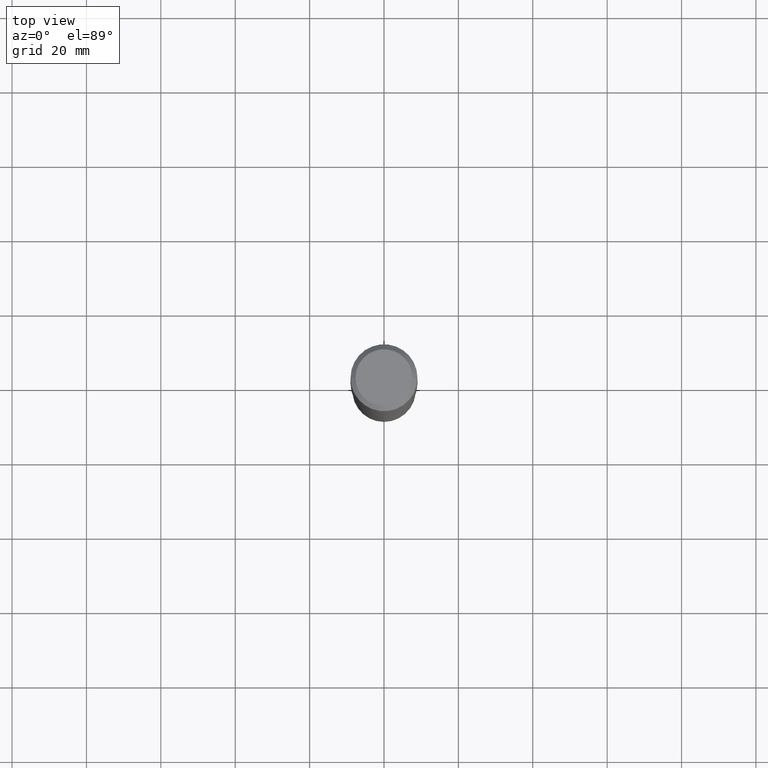
[diagram: clean part render]
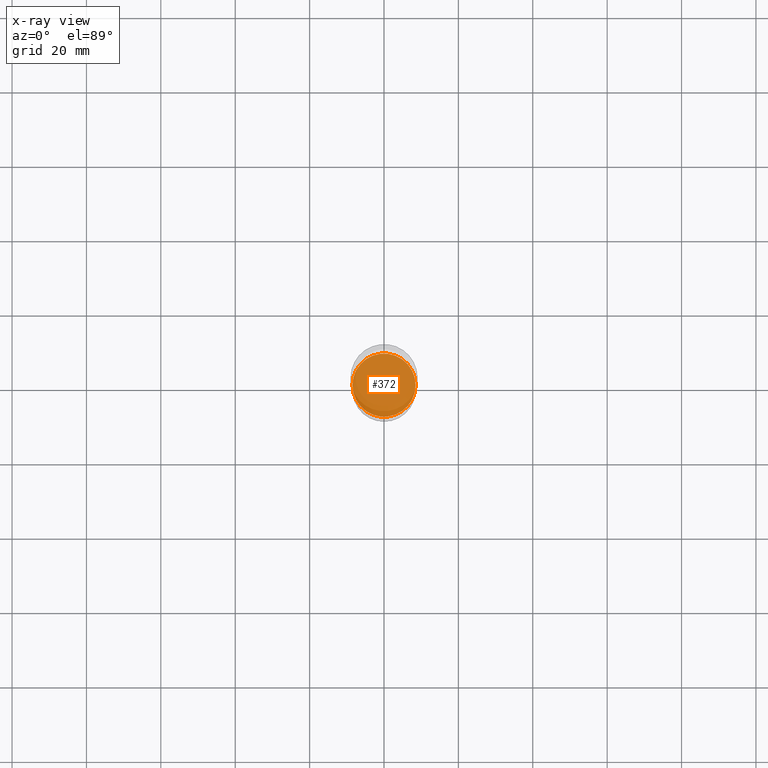
[diagram: x-ray — body ghosted, one internal face saturated and labeled with its STEP entity id]
A machine part, top view, then the same camera in x-ray: the body is ghosted and one INTERNAL B-rep face — a face not visible from any outside direction — is saturated and labeled: STEP entity #372.
In plain terms, the highlighted planar face has unit normal (-0, 0, 1).
Its self-contained STEP definition (entity closure, byte-faithful):
#25 = DIRECTION ( 'NONE',  ( -2.445468806185136597E-29, 3.491481338843145583E-15, 1.000000000000000000 ) ) ;
#46 = AXIS2_PLACEMENT_3D ( 'NONE', #106, #244, #393 ) ;
#70 = FACE_OUTER_BOUND ( 'NONE', #109, .T. ) ;
#92 = EDGE_CURVE ( 'NONE', #184, #147, #386, .T. ) ;
#106 = CARTESIAN_POINT ( 'NONE',  ( 1.121785450773245711E-28, -1.601612319754127659E-14, -4.587199999999999278 ) ) ;
#109 = EDGE_LOOP ( 'NONE', ( #229, #431 ) ) ;
#121 = CARTESIAN_POINT ( 'NONE',  ( 1.121785450773245711E-28, -1.601612319754127659E-14, -4.587199999999999278 ) ) ;
#147 = VERTEX_POINT ( 'NONE', #279 ) ;
#176 = CIRCLE ( 'NONE', #46, 0.3341500000000000581 ) ;
#184 = VERTEX_POINT ( 'NONE', #205 ) ;
#205 = CARTESIAN_POINT ( 'NONE',  ( -0.3341500000000000581, -1.363919541882479020E-14, -4.587199999999999278 ) ) ;
#214 = CARTESIAN_POINT ( 'NONE',  ( 1.121785450773245711E-28, -1.601612319754127659E-14, -4.587199999999999278 ) ) ;
#229 = ORIENTED_EDGE ( 'NONE', *, *, #349, .F. ) ;
#234 = DIRECTION ( 'NONE',  ( 1.000000000000000000, -6.982962677686265922E-15, 4.876176775795935793E-29 ) ) ;
#244 = DIRECTION ( 'NONE',  ( -2.445468806185136597E-29, 3.491481338843145583E-15, 1.000000000000000000 ) ) ;
#265 = DIRECTION ( 'NONE',  ( -2.438088387897960049E-29, 3.491481338843145188E-15, 1.000000000000000000 ) ) ;
#279 = CARTESIAN_POINT ( 'NONE',  ( 0.3341500000000000581, -1.834948017629014266E-14, -4.587199999999999278 ) ) ;
#288 = PLANE ( 'NONE',  #318 ) ;
#318 = AXIS2_PLACEMENT_3D ( 'NONE', #121, #265, #234 ) ;
#338 = AXIS2_PLACEMENT_3D ( 'NONE', #214, #25, #456 ) ;
#349 = EDGE_CURVE ( 'NONE', #147, #184, #176, .T. ) ;
#372 = ADVANCED_FACE ( 'NONE', ( #70 ), #288, .F. ) ;
#386 = CIRCLE ( 'NONE', #338, 0.3341500000000000581 ) ;
#393 = DIRECTION ( 'NONE',  ( 1.000000000000000000, -6.982962677686268288E-15, 0.000000000000000000 ) ) ;
#431 = ORIENTED_EDGE ( 'NONE', *, *, #92, .F. ) ;
#456 = DIRECTION ( 'NONE',  ( 1.000000000000000000, -6.982962677686268288E-15, 0.000000000000000000 ) ) ;